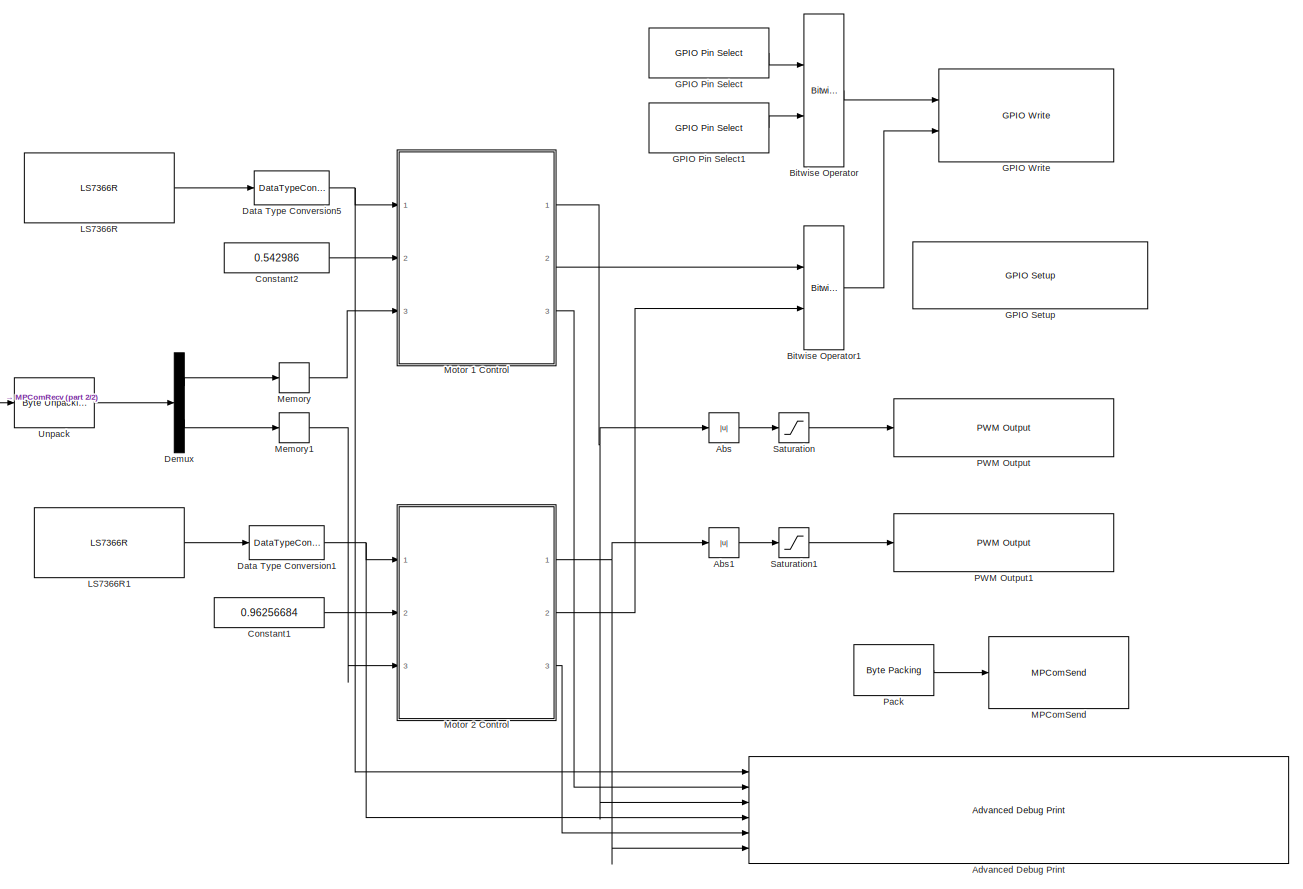
[diagram: root canvas - part 1/2, most of the canvas]
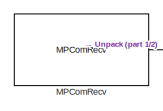
[diagram: root canvas - part 2/2, middle left region]
MODEL slx_210bab328511
KIND model
CONFIG AbsTol = auto
CONFIG EnableMultiTasking = off
CONFIG FixedStep = 0.2
CONFIG MaxStep = auto
CONFIG MinStep = auto
CONFIG RelTol = 1e-3
CONFIG SampleTimeConstraint = Unconstrained
CONFIG Solver = FixedStepDiscrete
CONFIG SolverName = FixedStepDiscrete
CONFIG StartTime = 0.0
CONFIG StopTime = 10.0
BLOCK [Abs] Abs
  SaturateOnIntegerOverflow = off
BLOCK [Abs] Abs1
  SaturateOnIntegerOverflow = off
BLOCK [Reference] Advanced Debug Print  REF=stellaris_lp_lib/Debug/Advanced Debug Print
  Ports = [6]
  SourceBlock = stellaris_lp_lib/Debug/Advanced Debug Print
  SourceProductName = Run on Stellaris LaunchPad
  SourceType = Advanced Debug Print
BLOCK [Reference] Bitwise Operator  REF=simulink/Logic and Bit
Operations/Bitwise
Operator
  Ports = [2, 1]
  SourceBlock = simulink/Logic and Bit\nOperations/Bitwise\nOperator
  SourceProductBaseCode = SL
  SourceProductName = Simulink
  SourceType = Bitwise Operator
BLOCK [Reference] Bitwise Operator1  REF=simulink/Logic and Bit
Operations/Bitwise
Operator
  Ports = [2, 1]
  SourceBlock = simulink/Logic and Bit\nOperations/Bitwise\nOperator
  SourceProductBaseCode = SL
  SourceProductName = Simulink
  SourceType = Bitwise Operator
BLOCK [Constant] Constant1
  LockScale = on
  OutDataTypeStr = single
  Value = 0.96256684
BLOCK [Constant] Constant2
  LockScale = on
  OutDataTypeStr = single
  Value = 0.542986
BLOCK [DataTypeConversion] Data Type Conversion1
  OutDataTypeStr = single
  RndMeth = Floor
  SaturateOnIntegerOverflow = off
BLOCK [DataTypeConversion] Data Type Conversion5
  OutDataTypeStr = single
  RndMeth = Floor
  SaturateOnIntegerOverflow = off
BLOCK [Demux] Demux
  DisplayOption = bar
  Outputs = 2
  Ports = [1, 2]
BLOCK [Reference] GPIO Pin Select  REF=stellaris_lib/GPIO/GPIO Pin Select
  Ports = [0, 1]
  SourceBlock = stellaris_lib/GPIO/GPIO Pin Select
  SourceProductName = TI Stellaris LaunchPad
  SourceType = GPIO pin selector
BLOCK [Reference] GPIO Pin Select1  REF=stellaris_lib/GPIO/GPIO Pin Select
  Ports = [0, 1]
  SourceBlock = stellaris_lib/GPIO/GPIO Pin Select
  SourceProductName = TI Stellaris LaunchPad
  SourceType = GPIO pin selector
BLOCK [Reference] GPIO Setup  REF=stellaris_lp_lib/GPIO/GPIO Setup
  Ports = []
  SourceBlock = stellaris_lp_lib/GPIO/GPIO Setup
  SourceProductName = Run on Stellaris LaunchPad
  SourceType = GPIO Setup
BLOCK [Reference] GPIO Write  REF=stellaris_lp_lib/GPIO/GPIO Write
  Ports = [2]
  SourceBlock = stellaris_lp_lib/GPIO/GPIO Write
  SourceProductName = Run on Stellaris LaunchPad
  SourceType = GPIO Write
BLOCK [Reference] LS7366R  REF=stellaris_lp_lib/SPIDev/LS7366R
  Ports = [0, 1]
  SourceBlock = stellaris_lp_lib/SPIDev/LS7366R
  SourceProductName = Run on Stellaris LaunchPad
  SourceType = LS7366R Quadrature Encoder Interface
BLOCK [Reference] LS7366R1  REF=stellaris_lp_lib/SPIDev/LS7366R
  Ports = [0, 1]
  SourceBlock = stellaris_lp_lib/SPIDev/LS7366R
  SourceProductName = Run on Stellaris LaunchPad
  SourceType = LS7366R Quadrature Encoder Interface
BLOCK [Reference] MPComRecv  REF=stellaris_lp_lib/Communication/MPComRecv
  Ports = [0, 1]
  SourceBlock = stellaris_lp_lib/Communication/MPComRecv
  SourceProductName = Run on Stellaris LaunchPad
  SourceType = Multi-port Serial Receive
BLOCK [Reference] MPComSend  REF=stellaris_lp_lib/Communication/MPComSend
  Ports = [1, 1]
  SourceBlock = stellaris_lp_lib/Communication/MPComSend
  SourceProductName = Run on Stellaris LaunchPad
  SourceType = Multi-port Serial Send
BLOCK [Memory] Memory
BLOCK [Memory] Memory1
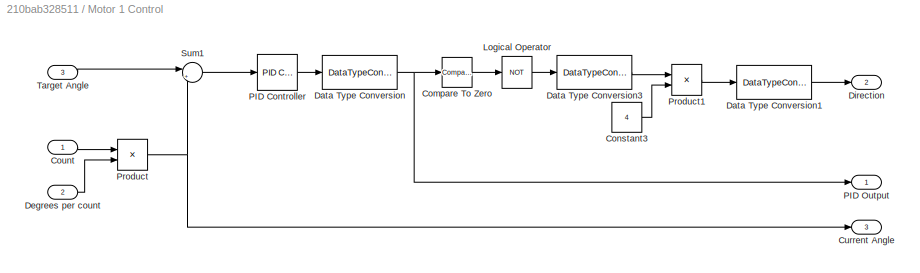
BLOCK [SubSystem] Motor 1 Control
  Ports = [3, 3]
  RequestExecContextInheritance = off
  ShowPortLabels = FromPortBlockName
  Variant = off
BLOCK [Reference] Motor 1 Control/Compare To Zero  REF=simulink/Logic and Bit
Operations/Compare
To Zero
  Ports = [1, 1]
  SourceBlock = simulink/Logic and Bit\nOperations/Compare\nTo Zero
  SourceProductBaseCode = SL
  SourceProductName = Simulink
  SourceType = Compare To Zero
BLOCK [Constant] Motor 1 Control/Constant3
  OutDataTypeStr = uint8
  Value = 4
BLOCK [Inport] Motor 1 Control/Count
  IconDisplay = Port number
BLOCK [Outport] Motor 1 Control/Current Angle
  IconDisplay = Port number
  Port = 3
BLOCK [DataTypeConversion] Motor 1 Control/Data Type Conversion
  RndMeth = Floor
  SaturateOnIntegerOverflow = off
BLOCK [DataTypeConversion] Motor 1 Control/Data Type Conversion1
  OutDataTypeStr = uint8
  RndMeth = Floor
  SaturateOnIntegerOverflow = off
BLOCK [DataTypeConversion] Motor 1 Control/Data Type Conversion3
  OutDataTypeStr = uint8
  RndMeth = Floor
  SaturateOnIntegerOverflow = off
BLOCK [Inport] Motor 1 Control/Degrees per count
  Description = Degrees per tick
  IconDisplay = Signal name
  Port = 2
BLOCK [Outport] Motor 1 Control/Direction
  IconDisplay = Port number
  Port = 2
BLOCK [Logic] Motor 1 Control/Logical Operator
  AllPortsSameDT = off
  Inputs = 1
  Operator = NOT
  OutDataTypeStr = boolean
  Ports = [1, 1]
BLOCK [Reference] Motor 1 Control/PID Controller  REF=simulink/Continuous/PID Controller
  Ports = [1, 1]
  SourceBlock = simulink/Continuous/PID Controller
  SourceProductBaseCode = SL
  SourceProductName = Simulink
  SourceType = PID 1dof
BLOCK [Outport] Motor 1 Control/PID Output
  IconDisplay = Port number
BLOCK [Product] Motor 1 Control/Product
  InputSameDT = off
  OutDataTypeStr = single
  Ports = [2, 1]
  RndMeth = Floor
  SaturateOnIntegerOverflow = off
BLOCK [Product] Motor 1 Control/Product1
  InputSameDT = off
  OutDataTypeStr = single
  Ports = [2, 1]
  RndMeth = Floor
  SaturateOnIntegerOverflow = off
BLOCK [Sum] Motor 1 Control/Sum1
  IconShape = round
  InputSameDT = off
  Inputs = |+-
  OutDataTypeStr = Inherit: Inherit via internal rule
  Ports = [2, 1]
  SaturateOnIntegerOverflow = off
BLOCK [Inport] Motor 1 Control/Target Angle
  IconDisplay = Port number
  Port = 3
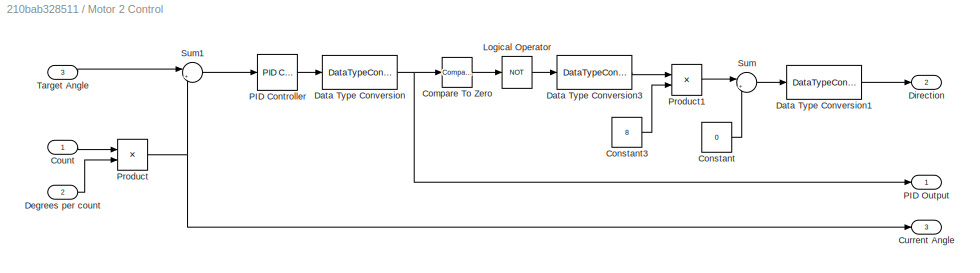
BLOCK [SubSystem] Motor 2 Control
  Ports = [3, 3]
  RequestExecContextInheritance = off
  ShowPortLabels = FromPortBlockName
  Variant = off
BLOCK [Reference] Motor 2 Control/Compare To Zero  REF=simulink/Logic and Bit
Operations/Compare
To Zero
  Ports = [1, 1]
  SourceBlock = simulink/Logic and Bit\nOperations/Compare\nTo Zero
  SourceProductBaseCode = SL
  SourceProductName = Simulink
  SourceType = Compare To Zero
BLOCK [Constant] Motor 2 Control/Constant
  Value = 0
BLOCK [Constant] Motor 2 Control/Constant3
  OutDataTypeStr = uint8
  Value = 8
BLOCK [Inport] Motor 2 Control/Count
  IconDisplay = Port number
BLOCK [Outport] Motor 2 Control/Current Angle
  IconDisplay = Port number
  Port = 3
BLOCK [DataTypeConversion] Motor 2 Control/Data Type Conversion
  RndMeth = Floor
  SaturateOnIntegerOverflow = off
BLOCK [DataTypeConversion] Motor 2 Control/Data Type Conversion1
  OutDataTypeStr = uint8
  RndMeth = Floor
  SaturateOnIntegerOverflow = off
BLOCK [DataTypeConversion] Motor 2 Control/Data Type Conversion3
  OutDataTypeStr = uint8
  RndMeth = Floor
  SaturateOnIntegerOverflow = off
BLOCK [Inport] Motor 2 Control/Degrees per count
  Description = Degrees per tick
  IconDisplay = Signal name
  Port = 2
BLOCK [Outport] Motor 2 Control/Direction
  IconDisplay = Port number
  Port = 2
BLOCK [Logic] Motor 2 Control/Logical Operator
  AllPortsSameDT = off
  Inputs = 1
  Operator = NOT
  OutDataTypeStr = boolean
  Ports = [1, 1]
BLOCK [Reference] Motor 2 Control/PID Controller  REF=simulink/Continuous/PID Controller
  Ports = [1, 1]
  SourceBlock = simulink/Continuous/PID Controller
  SourceProductBaseCode = SL
  SourceProductName = Simulink
  SourceType = PID 1dof
BLOCK [Outport] Motor 2 Control/PID Output
  IconDisplay = Port number
BLOCK [Product] Motor 2 Control/Product
  InputSameDT = off
  OutDataTypeStr = single
  Ports = [2, 1]
  RndMeth = Floor
  SaturateOnIntegerOverflow = off
BLOCK [Product] Motor 2 Control/Product1
  InputSameDT = off
  OutDataTypeStr = single
  Ports = [2, 1]
  RndMeth = Floor
  SaturateOnIntegerOverflow = off
BLOCK [Sum] Motor 2 Control/Sum
  IconShape = round
  InputSameDT = off
  Inputs = |++
  OutDataTypeStr = Inherit: Inherit via internal rule
  Ports = [2, 1]
  SaturateOnIntegerOverflow = off
BLOCK [Sum] Motor 2 Control/Sum1
  IconShape = round
  InputSameDT = off
  Inputs = |+-
  OutDataTypeStr = Inherit: Inherit via internal rule
  Ports = [2, 1]
  SaturateOnIntegerOverflow = off
BLOCK [Inport] Motor 2 Control/Target Angle
  IconDisplay = Port number
  Port = 3
BLOCK [Reference] PWM Output  REF=stellaris_lp_lib/PWM/PWM Output
  Ports = [1]
  SourceBlock = stellaris_lp_lib/PWM/PWM Output
  SourceProductName = Run on Stellaris LaunchPad
  SourceType = PWM Output
BLOCK [Reference] PWM Output1  REF=stellaris_lp_lib/PWM/PWM Output
  Ports = [1]
  SourceBlock = stellaris_lp_lib/PWM/PWM Output
  SourceProductName = Run on Stellaris LaunchPad
  SourceType = PWM Output
BLOCK [Reference] Pack  REF=xpcutilitieslib/Byte Packing 
  Ports = [2, 1]
  SourceBlock = xpcutilitieslib/Byte Packing
  SourceProductBaseCode = XP
  SourceProductName = Simulink Real-Time
  SourceType = xpcbytepacking
BLOCK [Saturate] Saturation
  InputPortMap = u0
  LowerLimit = 0
  Ports = [1, 1]
  UpperLimit = 70
BLOCK [Saturate] Saturation1
  InputPortMap = u0
  LowerLimit = 0
  Ports = [1, 1]
  UpperLimit = 70
BLOCK [Reference] Unpack  REF=xpcutilitieslib/Byte Unpacking 
  Ports = [1, 1]
  SourceBlock = xpcutilitieslib/Byte Unpacking
  SourceProductBaseCode = XP
  SourceProductName = Simulink Real-Time
  SourceType = xpcbytepacking
LINE Abs1:1 -> Saturation1:1
LINE Abs:1 -> Saturation:1
LINE Bitwise Operator1:1 -> GPIO Write:2
LINE Bitwise Operator:1 -> GPIO Write:1
LINE Constant1:1 -> Motor 2 Control:2
LINE Constant2:1 -> Motor 1 Control:2
NET Data Type Conversion1:1 -> Advanced Debug Print:4, Motor 2 Control:1
NET Data Type Conversion5:1 -> Advanced Debug Print:1, Motor 1 Control:1
LINE Demux:1 -> Memory:1
LINE Demux:2 -> Memory1:1
LINE GPIO Pin Select1:1 -> Bitwise Operator:2
LINE GPIO Pin Select:1 -> Bitwise Operator:1
LINE LS7366R1:1 -> Data Type Conversion1:1
LINE LS7366R:1 -> Data Type Conversion5:1
LINE MPComRecv:1 -> Unpack:1
LINE Memory1:1 -> Motor 2 Control:3
LINE Memory:1 -> Motor 1 Control:3
LINE Motor 1 Control/Compare To Zero:1 -> Motor 1 Control/Logical Operator:1
LINE Motor 1 Control/Constant3:1 -> Motor 1 Control/Product1:2
LINE Motor 1 Control/Count:1 -> Motor 1 Control/Product:1
LINE Motor 1 Control/Data Type Conversion1:1 -> Motor 1 Control/Direction:1
LINE Motor 1 Control/Data Type Conversion3:1 -> Motor 1 Control/Product1:1
NET Motor 1 Control/Data Type Conversion:1 -> Motor 1 Control/Compare To Zero:1, Motor 1 Control/PID Output:1
LINE Motor 1 Control/Degrees per count:1 -> Motor 1 Control/Product:2
LINE Motor 1 Control/Logical Operator:1 -> Motor 1 Control/Data Type Conversion3:1
LINE Motor 1 Control/PID Controller:1 -> Motor 1 Control/Data Type Conversion:1
LINE Motor 1 Control/Product1:1 -> Motor 1 Control/Data Type Conversion1:1
NET Motor 1 Control/Product:1 -> Motor 1 Control/Current Angle:1, Motor 1 Control/Sum1:2
LINE Motor 1 Control/Sum1:1 -> Motor 1 Control/PID Controller:1
LINE Motor 1 Control/Target Angle:1 -> Motor 1 Control/Sum1:1
NET Motor 1 Control:1 -> Abs:1, Advanced Debug Print:3
LINE Motor 1 Control:2 -> Bitwise Operator1:1
LINE Motor 1 Control:3 -> Advanced Debug Print:2
LINE Motor 2 Control/Compare To Zero:1 -> Motor 2 Control/Logical Operator:1
LINE Motor 2 Control/Constant3:1 -> Motor 2 Control/Product1:2
LINE Motor 2 Control/Constant:1 -> Motor 2 Control/Sum:2
LINE Motor 2 Control/Count:1 -> Motor 2 Control/Product:1
LINE Motor 2 Control/Data Type Conversion1:1 -> Motor 2 Control/Direction:1
LINE Motor 2 Control/Data Type Conversion3:1 -> Motor 2 Control/Product1:1
NET Motor 2 Control/Data Type Conversion:1 -> Motor 2 Control/Compare To Zero:1, Motor 2 Control/PID Output:1
LINE Motor 2 Control/Degrees per count:1 -> Motor 2 Control/Product:2
LINE Motor 2 Control/Logical Operator:1 -> Motor 2 Control/Data Type Conversion3:1
LINE Motor 2 Control/PID Controller:1 -> Motor 2 Control/Data Type Conversion:1
LINE Motor 2 Control/Product1:1 -> Motor 2 Control/Sum:1
NET Motor 2 Control/Product:1 -> Motor 2 Control/Current Angle:1, Motor 2 Control/Sum1:2
LINE Motor 2 Control/Sum1:1 -> Motor 2 Control/PID Controller:1
LINE Motor 2 Control/Sum:1 -> Motor 2 Control/Data Type Conversion1:1
LINE Motor 2 Control/Target Angle:1 -> Motor 2 Control/Sum1:1
NET Motor 2 Control:1 -> Abs1:1, Advanced Debug Print:6
LINE Motor 2 Control:2 -> Bitwise Operator1:2
LINE Motor 2 Control:3 -> Advanced Debug Print:5
LINE Pack:1 -> MPComSend:1
LINE Saturation1:1 -> PWM Output1:1
LINE Saturation:1 -> PWM Output:1
LINE Unpack:1 -> Demux:1
note: NET lines group one-source signal fan-out (src -> all destinations, sorted); 1:1 wires keep LINE
